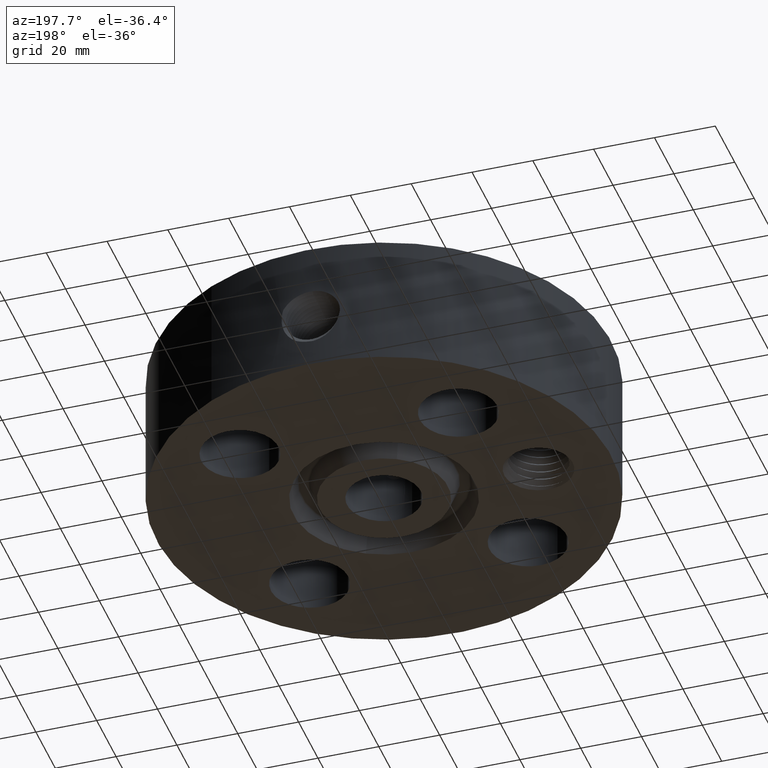
[diagram: clean part render]
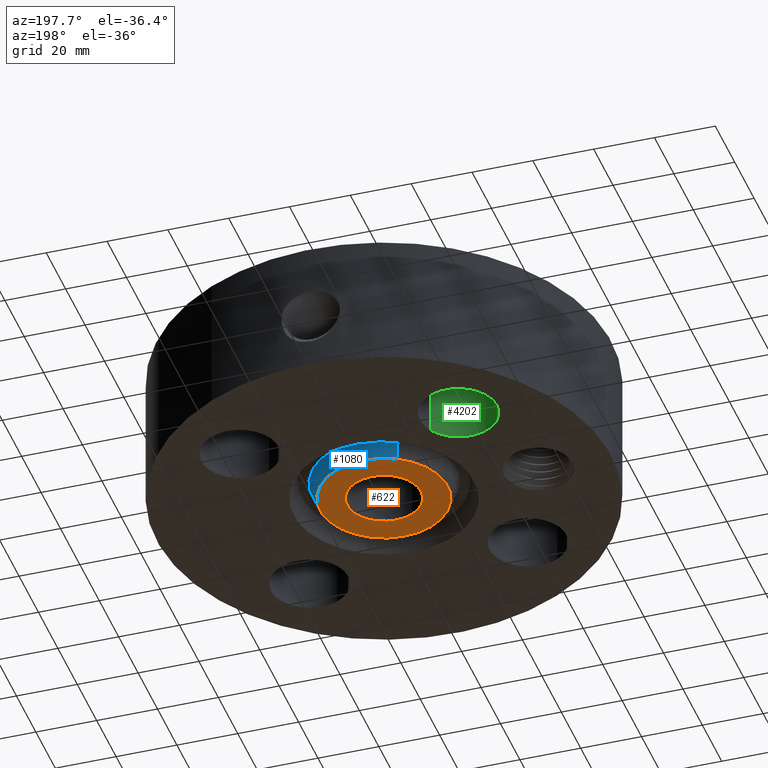
[diagram: same view with three faces highlighted in distinct colors, each labeled with its STEP entity id]
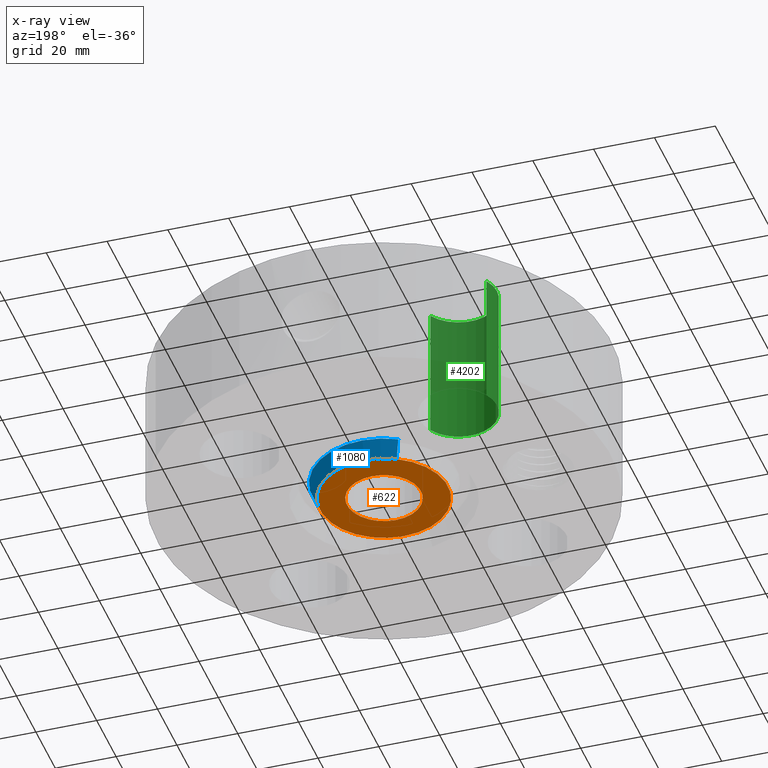
[diagram: x-ray of the same camera — body ghosted, the three highlighted faces saturated]
A machine part, auxiliary view with three faces highlighted in distinct colors.
The next image is the same camera in x-ray (body ghosted, the three faces saturated) — at least one of them is partly hidden behind the body in this view.
Their STEP definitions:

[orange] entity #622 — the highlighted planar face has unit normal (0, 0, -1).
#252=AXIS2_PLACEMENT_3D('Circle Axis2P3D',#250,#251,$) ;
#543=AXIS2_PLACEMENT_3D('Circle Axis2P3D',#541,#542,$) ;
#598=AXIS2_PLACEMENT_3D('Plane Axis2P3D',#595,#596,#597) ;
#602=AXIS2_PLACEMENT_3D('Circle Axis2P3D',#600,#601,$) ;
#611=AXIS2_PLACEMENT_3D('Circle Axis2P3D',#609,#610,$) ;
#247=CARTESIAN_POINT('Vertex',(0.229405120223,0.419923255866,-5.59482469102E-015)) ;
#250=CARTESIAN_POINT('Axis2P3D Location',(0.,0.,-6.15430716013E-015)) ;
#254=CARTESIAN_POINT('Vertex',(-0.229405120223,-0.419923255866,-5.59482469102E-015)) ;
#541=CARTESIAN_POINT('Axis2P3D Location',(0.,0.,-6.15430716013E-015)) ;
#595=CARTESIAN_POINT('Axis2P3D Location',(0.,0.478500000002,0.)) ;
#600=CARTESIAN_POINT('Axis2P3D Location',(0.,0.,0.)) ;
#604=CARTESIAN_POINT('Vertex',(-0.396964345966,0.726638361248,0.)) ;
#606=CARTESIAN_POINT('Vertex',(0.396964345966,-0.726638361248,0.)) ;
#609=CARTESIAN_POINT('Axis2P3D Location',(-1.39870617276E-016,6.99353086378E-017,0.)) ;
#251=DIRECTION('Axis2P3D Direction',(0.,0.,-0.0393700787402)) ;
#542=DIRECTION('Axis2P3D Direction',(0.,0.,-0.0393700787402)) ;
#596=DIRECTION('Axis2P3D Direction',(0.,0.,-0.0393700787402)) ;
#597=DIRECTION('Axis2P3D XDirection',(0.0393700787402,0.,0.)) ;
#601=DIRECTION('Axis2P3D Direction',(0.,0.,-0.0393700787402)) ;
#610=DIRECTION('Axis2P3D Direction',(0.,0.,-0.0393700787402)) ;
#615=ORIENTED_EDGE('',*,*,#608,.T.) ;
#616=ORIENTED_EDGE('',*,*,#613,.T.) ;
#619=ORIENTED_EDGE('',*,*,#256,.F.) ;
#620=ORIENTED_EDGE('',*,*,#545,.F.) ;
#621=FACE_BOUND('',#618,.T.) ;
#622=ADVANCED_FACE('PartBody',(#617,#621),#599,.T.) ;
#253=CIRCLE('generated circle',#252,0.478500000002) ;
#544=CIRCLE('generated circle',#543,0.478500000002) ;
#603=CIRCLE('generated circle',#602,0.828000000003) ;
#612=CIRCLE('generated circle',#611,0.828000000003) ;
#256=EDGE_CURVE('',#248,#255,#253,.T.) ;
#545=EDGE_CURVE('',#255,#248,#544,.T.) ;
#608=EDGE_CURVE('',#605,#607,#603,.T.) ;
#613=EDGE_CURVE('',#607,#605,#612,.T.) ;
#614=EDGE_LOOP('',(#615,#616)) ;
#618=EDGE_LOOP('',(#619,#620)) ;
#617=FACE_OUTER_BOUND('',#614,.T.) ;
#599=PLANE('',#598) ;
#248=VERTEX_POINT('',#247) ;
#255=VERTEX_POINT('',#254) ;
#605=VERTEX_POINT('',#604) ;
#607=VERTEX_POINT('',#606) ;

[blue] entity #1080 — the highlighted conical surface has half-angle 23 deg.
#602=AXIS2_PLACEMENT_3D('Circle Axis2P3D',#600,#601,$) ;
#1053=AXIS2_PLACEMENT_3D('Cone Axis2P3D',#1050,#1051,#1052) ;
#1064=AXIS2_PLACEMENT_3D('Circle Axis2P3D',#1062,#1063,$) ;
#600=CARTESIAN_POINT('Axis2P3D Location',(0.,0.,0.)) ;
#604=CARTESIAN_POINT('Vertex',(-0.396964345966,0.726638361248,0.)) ;
#606=CARTESIAN_POINT('Vertex',(0.396964345966,-0.726638361248,0.)) ;
#1050=CARTESIAN_POINT('Axis2P3D Location',(0.,0.,-0.0600000000002)) ;
#1055=CARTESIAN_POINT('Line Origine',(-0.420542523987,0.769797926616,0.115860966928)) ;
#1059=CARTESIAN_POINT('Vertex',(-0.444120702008,0.812957491984,0.231721933856)) ;
#1062=CARTESIAN_POINT('Axis2P3D Location',(0.,0.,0.231721933856)) ;
#1066=CARTESIAN_POINT('Vertex',(0.444120702008,-0.812957491984,0.231721933856)) ;
#1069=CARTESIAN_POINT('Line Origine',(0.420542523987,-0.769797926616,0.115860966928)) ;
#601=DIRECTION('Axis2P3D Direction',(0.,0.,-0.0393700787402)) ;
#1051=DIRECTION('Axis2P3D Direction',(0.,0.,0.0393700787402)) ;
#1052=DIRECTION('Axis2P3D XDirection',(-0.0188750212049,0.0345504945626,0.)) ;
#1056=DIRECTION('Vector Direction',(-0.00737505833565,0.0134999537303,0.0362403485611)) ;
#1063=DIRECTION('Axis2P3D Direction',(0.,0.,0.0393700787402)) ;
#1070=DIRECTION('Vector Direction',(0.00737505833565,-0.0134999537303,0.0362403485611)) ;
#1057=VECTOR('Line Direction',#1056,0.0393700787402) ;
#1071=VECTOR('Line Direction',#1070,0.0393700787402) ;
#1075=ORIENTED_EDGE('',*,*,#1061,.F.) ;
#1076=ORIENTED_EDGE('',*,*,#1068,.F.) ;
#1077=ORIENTED_EDGE('',*,*,#1073,.T.) ;
#1078=ORIENTED_EDGE('',*,*,#608,.F.) ;
#1080=ADVANCED_FACE('PartBody',(#1079),#1054,.T.) ;
#603=CIRCLE('generated circle',#602,0.828000000003) ;
#1065=CIRCLE('generated circle',#1064,0.926360125288) ;
#1054=CONICAL_SURFACE('Cone',#1053,0.802531511031,0.401425727959) ;
#608=EDGE_CURVE('',#605,#607,#603,.T.) ;
#1061=EDGE_CURVE('',#1060,#605,#1058,.F.) ;
#1068=EDGE_CURVE('',#1067,#1060,#1065,.T.) ;
#1073=EDGE_CURVE('',#1067,#607,#1072,.F.) ;
#1074=EDGE_LOOP('',(#1075,#1076,#1077,#1078)) ;
#1079=FACE_OUTER_BOUND('',#1074,.T.) ;
#1058=LINE('Line',#1055,#1057) ;
#1072=LINE('Line',#1069,#1071) ;
#605=VERTEX_POINT('',#604) ;
#607=VERTEX_POINT('',#606) ;
#1060=VERTEX_POINT('',#1059) ;
#1067=VERTEX_POINT('',#1066) ;

[green] entity #4202 — the highlighted cylindrical surface (partial cylindrical patch) has radius 12.7 mm, axis along (-0, 0, -1).
#3003=AXIS2_PLACEMENT_3D('Circle Axis2P3D',#3001,#3002,$) ;
#4175=AXIS2_PLACEMENT_3D('Cylinder Axis2P3D',#4172,#4173,#4174) ;
#4186=AXIS2_PLACEMENT_3D('Circle Axis2P3D',#4184,#4185,$) ;
#2996=CARTESIAN_POINT('Vertex',(-1.85300484333,1.65392633168,1.75000000001)) ;
#2998=CARTESIAN_POINT('Vertex',(-0.975422281432,1.17450079308,1.75000000001)) ;
#3001=CARTESIAN_POINT('Axis2P3D Location',(-1.41421356238,1.41421356238,1.75000000001)) ;
#4172=CARTESIAN_POINT('Axis2P3D Location',(-1.41421356238,1.41421356238,1.74606299213)) ;
#4177=CARTESIAN_POINT('Line Origine',(-0.975422281432,1.17450079308,0.875000000003)) ;
#4181=CARTESIAN_POINT('Vertex',(-0.975422281432,1.17450079308,0.)) ;
#4184=CARTESIAN_POINT('Axis2P3D Location',(-1.41421356238,1.41421356238,0.)) ;
#4188=CARTESIAN_POINT('Vertex',(-1.85300484333,1.65392633168,0.)) ;
#4191=CARTESIAN_POINT('Line Origine',(-1.85300484333,1.65392633168,0.875000000003)) ;
#3002=DIRECTION('Axis2P3D Direction',(0.,0.,-0.0393700787402)) ;
#4173=DIRECTION('Axis2P3D Direction',(-0.,0.,-0.0393700787402)) ;
#4174=DIRECTION('Axis2P3D XDirection',(-0.0345504945626,0.0188750212049,0.)) ;
#4178=DIRECTION('Vector Direction',(0.,0.,-0.0393700787402)) ;
#4185=DIRECTION('Axis2P3D Direction',(-0.,0.,-0.0393700787402)) ;
#4192=DIRECTION('Vector Direction',(0.,0.,-0.0393700787402)) ;
#4179=VECTOR('Line Direction',#4178,0.0393700787402) ;
#4193=VECTOR('Line Direction',#4192,0.0393700787402) ;
#4197=ORIENTED_EDGE('',*,*,#4183,.F.) ;
#4198=ORIENTED_EDGE('',*,*,#4190,.T.) ;
#4199=ORIENTED_EDGE('',*,*,#4195,.T.) ;
#4200=ORIENTED_EDGE('',*,*,#3005,.F.) ;
#4202=ADVANCED_FACE('PartBody',(#4201),#4176,.F.) ;
#3004=CIRCLE('generated circle',#3003,0.500000000002) ;
#4187=CIRCLE('generated circle',#4186,0.500000000002) ;
#4176=CYLINDRICAL_SURFACE('generated cylinder',#4175,0.500000000002) ;
#3005=EDGE_CURVE('',#2999,#2997,#3004,.T.) ;
#4183=EDGE_CURVE('',#4182,#2999,#4180,.F.) ;
#4190=EDGE_CURVE('',#4182,#4189,#4187,.T.) ;
#4195=EDGE_CURVE('',#4189,#2997,#4194,.F.) ;
#4196=EDGE_LOOP('',(#4197,#4198,#4199,#4200)) ;
#4201=FACE_OUTER_BOUND('',#4196,.T.) ;
#4180=LINE('Line',#4177,#4179) ;
#4194=LINE('Line',#4191,#4193) ;
#2997=VERTEX_POINT('',#2996) ;
#2999=VERTEX_POINT('',#2998) ;
#4182=VERTEX_POINT('',#4181) ;
#4189=VERTEX_POINT('',#4188) ;